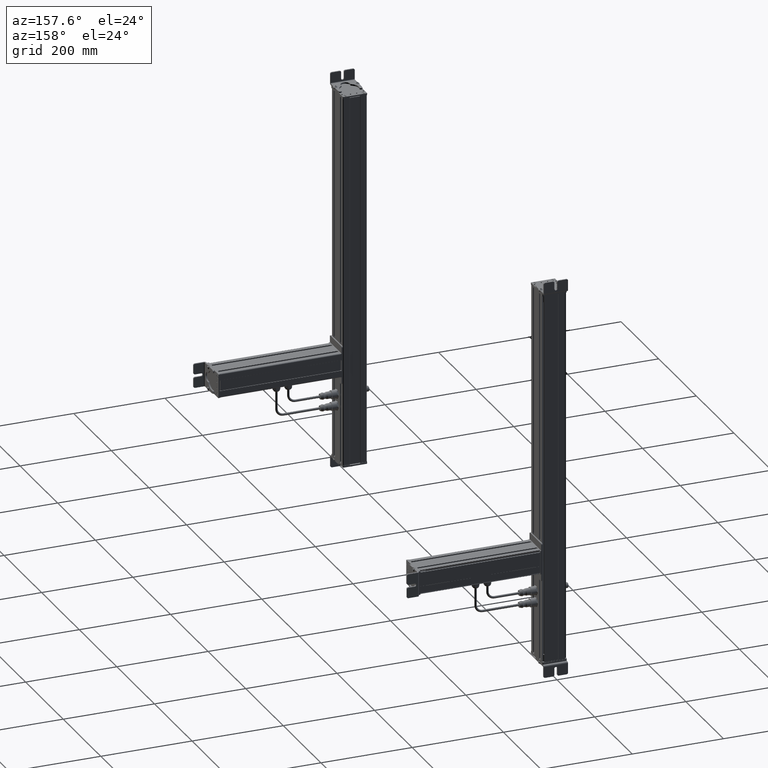
[diagram: clean part render]
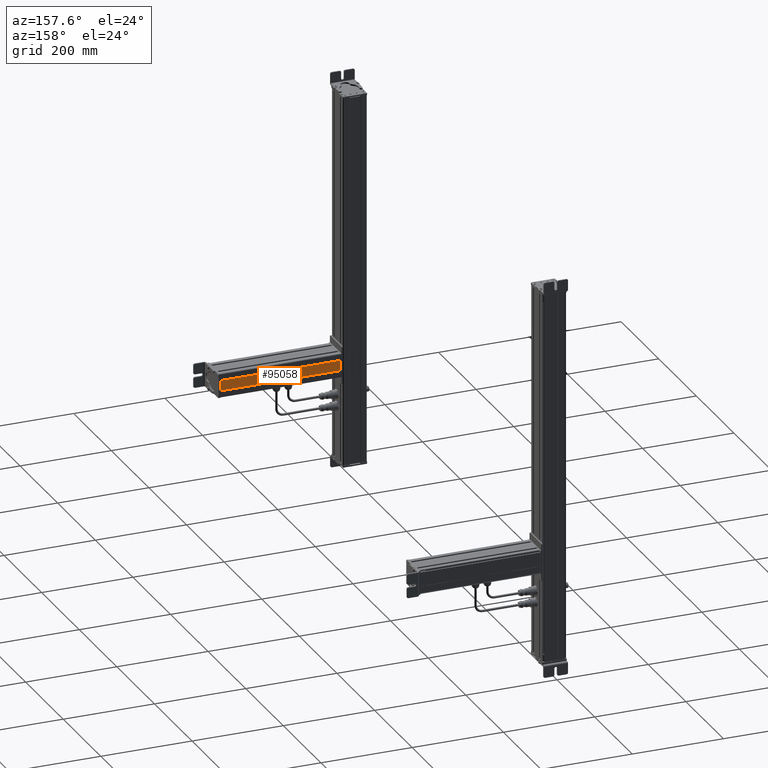
[diagram: same view with one face highlighted and labeled with its STEP entity id]
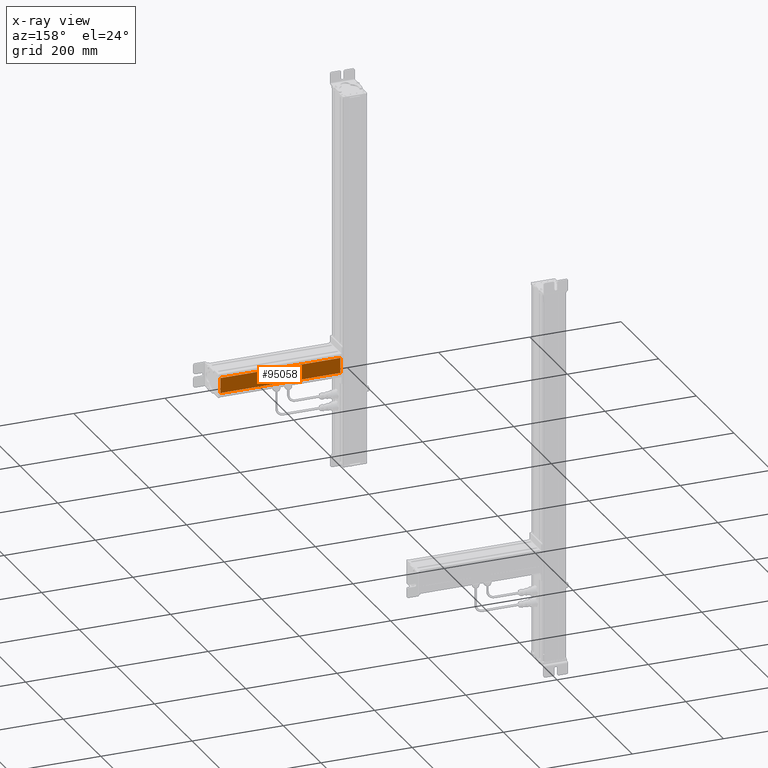
[diagram: x-ray of the same camera — body ghosted, the highlighted face saturated]
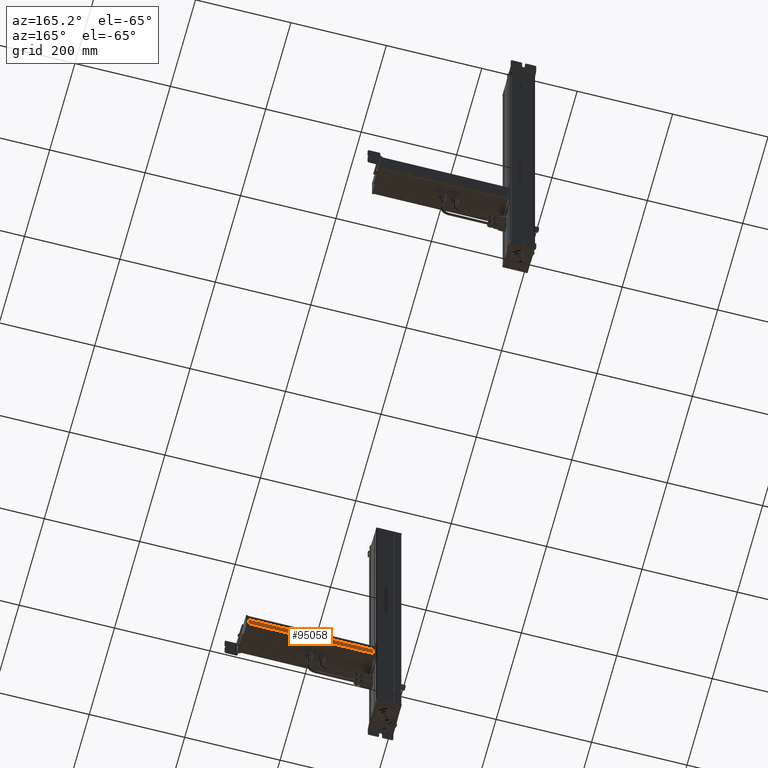
[diagram: same view with one face highlighted and labeled with its STEP entity id]
A machine part, auxiliary view. The second image highlights one B-rep face of the part: STEP entity #95058.
The next image is the same camera in x-ray: the body ghosted, the highlighted face saturated — about 0% of this face is hidden behind the body in this view.
A second angle (auxiliary view) of the same face is appended — the face is thin or edge-on in the first view.
In plain terms, the highlighted planar face has unit normal (0, 1, 0).
Its self-contained STEP definition (entity closure, byte-faithful):
#94973=CARTESIAN_POINT('Vertex',(671.195883662,180.560203323,238.47208509)) ;
#94978=CARTESIAN_POINT('Line Origine',(671.195883662,180.560203323,221.747567268)) ;
#94982=CARTESIAN_POINT('Vertex',(671.195883662,180.560203323,205.023049445)) ;
#95013=CARTESIAN_POINT('Vertex',(934.195883662,180.560203323,238.47208509)) ;
#95018=CARTESIAN_POINT('Line Origine',(802.695883662,180.560203323,238.47208509)) ;
#95035=CARTESIAN_POINT('Axis2P3D Location',(936.195883662,180.560203323,238.47208509)) ;
#95040=CARTESIAN_POINT('Line Origine',(802.695883662,180.560203323,205.023049445)) ;
#95044=CARTESIAN_POINT('Vertex',(934.195883662,180.560203323,205.023049445)) ;
#95047=CARTESIAN_POINT('Line Origine',(934.195883662,180.560203323,221.747567268)) ;
#94979=DIRECTION('Vector Direction',(0.,0.,-1.)) ;
#95019=DIRECTION('Vector Direction',(-1.,1.08067336237E-016,-3.24202008712E-016)) ;
#95036=DIRECTION('Axis2P3D Direction',(1.09048120098E-016,1.,1.06019454577E-016)) ;
#95037=DIRECTION('Axis2P3D XDirection',(3.12250225676E-016,1.06019454577E-016,-1.)) ;
#95041=DIRECTION('Vector Direction',(-1.,1.08067336237E-016,-3.24202008712E-016)) ;
#95048=DIRECTION('Vector Direction',(0.,0.,-1.)) ;
#95038=AXIS2_PLACEMENT_3D('Plane Axis2P3D',#95035,#95036,#95037) ;
#95053=ORIENTED_EDGE('',*,*,#95046,.T.) ;
#95054=ORIENTED_EDGE('',*,*,#94984,.F.) ;
#95055=ORIENTED_EDGE('',*,*,#95022,.F.) ;
#95056=ORIENTED_EDGE('',*,*,#95051,.T.) ;
#94980=VECTOR('Line Direction',#94979,1.) ;
#95020=VECTOR('Line Direction',#95019,1.) ;
#95042=VECTOR('Line Direction',#95041,1.) ;
#95049=VECTOR('Line Direction',#95048,1.) ;
#95058=ADVANCED_FACE('Body.26',(#95057),#95039,.T.) ;
#94984=EDGE_CURVE('',#94974,#94983,#94981,.T.) ;
#95022=EDGE_CURVE('',#95014,#94974,#95021,.T.) ;
#95046=EDGE_CURVE('',#95045,#94983,#95043,.T.) ;
#95051=EDGE_CURVE('',#95014,#95045,#95050,.T.) ;
#95052=EDGE_LOOP('',(#95053,#95054,#95055,#95056)) ;
#95057=FACE_OUTER_BOUND('',#95052,.T.) ;
#94981=LINE('Line',#94978,#94980) ;
#95021=LINE('Line',#95018,#95020) ;
#95043=LINE('Line',#95040,#95042) ;
#95050=LINE('Line',#95047,#95049) ;
#95039=PLANE('Plane',#95038) ;
#94974=VERTEX_POINT('',#94973) ;
#94983=VERTEX_POINT('',#94982) ;
#95014=VERTEX_POINT('',#95013) ;
#95045=VERTEX_POINT('',#95044) ;